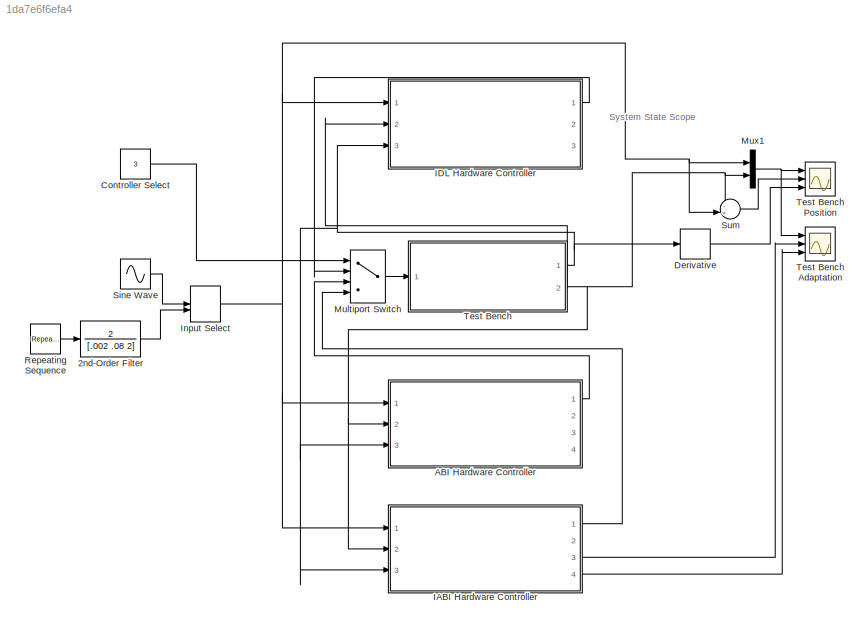
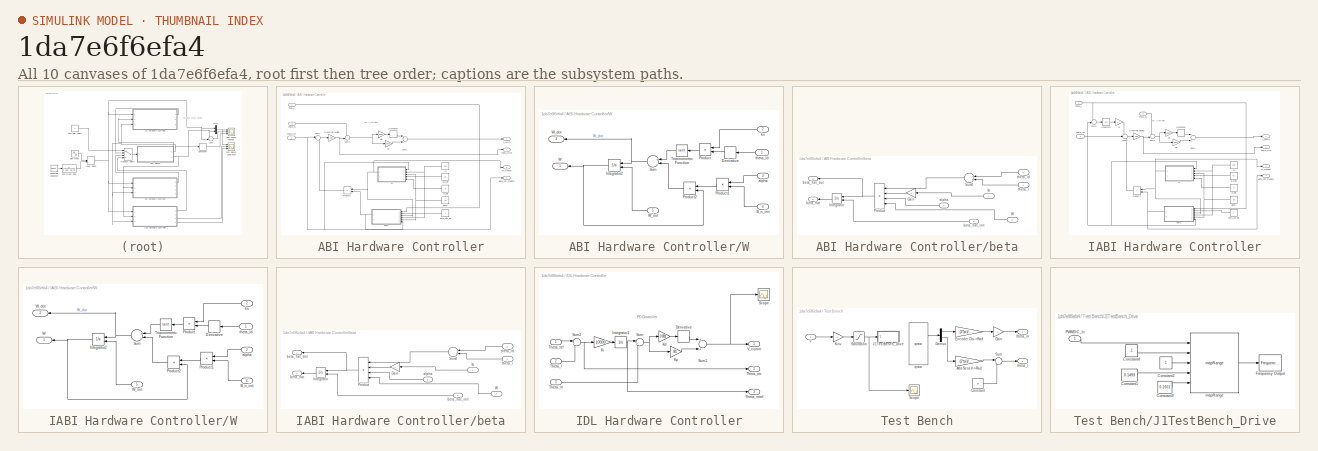
[diagram: thumbnail index - all 10 canvases of the model, root first then tree order]
MODEL slx_1da7e6f6efa4
KIND model
CONFIG AbsTol = auto
CONFIG EnableMultiTasking = on
CONFIG FixedStep = 0.001
CONFIG MaxStep = auto
CONFIG MinStep = auto
CONFIG RelTol = 1e-3
CONFIG SampleTimeConstraint = Unconstrained
CONFIG Solver = ode5
CONFIG SolverName = ode5
CONFIG StartTime = 0.0
CONFIG StopTime = inf
BLOCK [TransferFcn] 2nd-Order Filter
  Denominator = [.002 .08 2]
  Numerator = 2
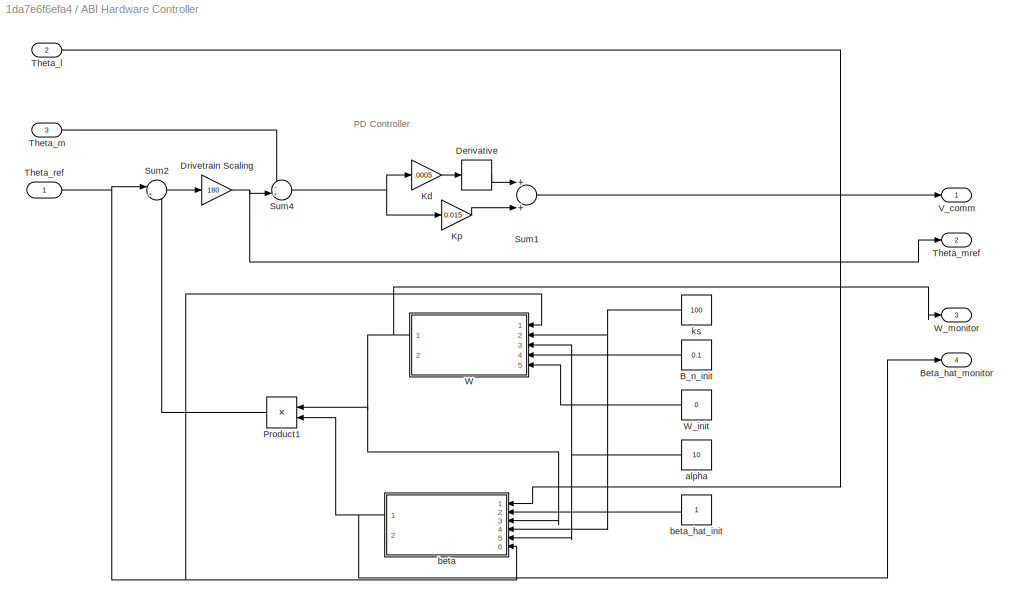
BLOCK [SubSystem] ABI Hardware Controller
  Commented = on
  Ports = [3, 4]
  RequestExecContextInheritance = off
  Variant = off
BLOCK [Constant] ABI Hardware Controller/B_n_init
  Value = 0.1
BLOCK [Outport] ABI Hardware Controller/Beta_hat_monitor
  IconDisplay = Port number
  Port = 4
BLOCK [Derivative] ABI Hardware Controller/Derivative
BLOCK [Gain] ABI Hardware Controller/Drivetrain Scaling
  Gain = 180
  OutDataTypeStr = Inherit: Inherit via internal rule
  ParamDataTypeStr = Inherit: Inherit via internal rule
  SaturateOnIntegerOverflow = off
BLOCK [Gain] ABI Hardware Controller/Kd
  Gain = .0005
  OutDataTypeStr = Inherit: Inherit via internal rule
  ParamDataTypeStr = Inherit: Inherit via internal rule
  SaturateOnIntegerOverflow = off
BLOCK [Gain] ABI Hardware Controller/Kp
  Gain = 0.015
  OutDataTypeStr = Inherit: Inherit via internal rule
  ParamDataTypeStr = Inherit: Inherit via internal rule
  SaturateOnIntegerOverflow = off
BLOCK [Product] ABI Hardware Controller/Product1
  InputSameDT = off
  OutDataTypeStr = Inherit: Inherit via internal rule
  Ports = [2, 1]
  RndMeth = Floor
  SaturateOnIntegerOverflow = off
BLOCK [Sum] ABI Hardware Controller/Sum1
  InputSameDT = off
  OutDataTypeStr = Inherit: Inherit via internal rule
  Ports = [2, 1]
  SaturateOnIntegerOverflow = off
BLOCK [Sum] ABI Hardware Controller/Sum2
  IconShape = round
  InputSameDT = off
  Inputs = |++
  OutDataTypeStr = Inherit: Inherit via internal rule
  Ports = [2, 1]
  SaturateOnIntegerOverflow = off
BLOCK [Sum] ABI Hardware Controller/Sum4
  IconShape = round
  InputSameDT = off
  Inputs = -+|
  OutDataTypeStr = Inherit: Inherit via internal rule
  Ports = [2, 1]
  SaturateOnIntegerOverflow = off
BLOCK [Inport] ABI Hardware Controller/Theta_l
  IconDisplay = Port number
  Port = 2
BLOCK [Inport] ABI Hardware Controller/Theta_m
  IconDisplay = Port number
  Port = 3
BLOCK [Outport] ABI Hardware Controller/Theta_mref
  IconDisplay = Port number
  Port = 2
BLOCK [Inport] ABI Hardware Controller/Theta_ref
  IconDisplay = Port number
BLOCK [Outport] ABI Hardware Controller/V_comm
  IconDisplay = Port number
BLOCK [SubSystem] ABI Hardware Controller/W
  Ports = [5, 2]
  RequestExecContextInheritance = off
  Variant = off
BLOCK [Inport] ABI Hardware Controller/W/B_n_init
  IconDisplay = Port number
  Port = 4
BLOCK [Derivative] ABI Hardware Controller/W/Derivative
BLOCK [Integrator] ABI Hardware Controller/W/Integrator2
  InitialConditionSource = external
  Ports = [2, 1]
BLOCK [Product] ABI Hardware Controller/W/Product
  InputSameDT = off
  OutDataTypeStr = Inherit: Inherit via internal rule
  Ports = [2, 1]
  RndMeth = Floor
  SaturateOnIntegerOverflow = off
BLOCK [Product] ABI Hardware Controller/W/Product1
  InputSameDT = off
  Inputs = */
  OutDataTypeStr = Inherit: Inherit via internal rule
  Ports = [2, 1]
  RndMeth = Floor
  SaturateOnIntegerOverflow = off
BLOCK [Product] ABI Hardware Controller/W/Product2
  InputSameDT = off
  OutDataTypeStr = Inherit: Inherit via internal rule
  Ports = [2, 1]
  RndMeth = Floor
  SaturateOnIntegerOverflow = off
BLOCK [Sum] ABI Hardware Controller/W/Sum
  InputSameDT = off
  Inputs = +-
  OutDataTypeStr = Inherit: Inherit via internal rule
  Ports = [2, 1]
  SaturateOnIntegerOverflow = off
BLOCK [Trigonometry] ABI Hardware Controller/W/Trigonometric Function
  Operator = tanh
  Ports = [1, 1]
BLOCK [Outport] ABI Hardware Controller/W/W
  IconDisplay = Port number
BLOCK [Outport] ABI Hardware Controller/W/W_dot
  IconDisplay = Port number
  Port = 2
BLOCK [Inport] ABI Hardware Controller/W/W_init
  IconDisplay = Port number
  Port = 5
BLOCK [Inport] ABI Hardware Controller/W/alpha
  IconDisplay = Port number
  Port = 3
BLOCK [Inport] ABI Hardware Controller/W/ks
  IconDisplay = Port number
  Port = 2
BLOCK [Inport] ABI Hardware Controller/W/theta_ld
  IconDisplay = Port number
BLOCK [Constant] ABI Hardware Controller/W_init
  Value = 0
BLOCK [Outport] ABI Hardware Controller/W_monitor
  IconDisplay = Port number
  Port = 3
BLOCK [Constant] ABI Hardware Controller/alpha
  Value = 10
BLOCK [SubSystem] ABI Hardware Controller/beta
  Ports = [6, 2]
  RequestExecContextInheritance = off
  Variant = off
BLOCK [Gain] ABI Hardware Controller/beta/Gain
  Gain = -1
  OutDataTypeStr = Inherit: Inherit via internal rule
  ParamDataTypeStr = Inherit: Inherit via internal rule
  SaturateOnIntegerOverflow = off
BLOCK [Integrator] ABI Hardware Controller/beta/Integrator
  InitialConditionSource = external
  Ports = [2, 1]
BLOCK [Product] ABI Hardware Controller/beta/Product
  InputSameDT = off
  Inputs = ****
  OutDataTypeStr = Inherit: Inherit via internal rule
  Ports = [4, 1]
  RndMeth = Floor
  SaturateOnIntegerOverflow = off
BLOCK [Sum] ABI Hardware Controller/beta/Sum4
  InputSameDT = off
  Inputs = -+
  OutDataTypeStr = Inherit: Inherit via internal rule
  Ports = [2, 1]
  SaturateOnIntegerOverflow = off
BLOCK [Inport] ABI Hardware Controller/beta/W
  IconDisplay = Port number
  Port = 3
BLOCK [Inport] ABI Hardware Controller/beta/alpha
  IconDisplay = Port number
  Port = 5
BLOCK [Outport] ABI Hardware Controller/beta/beta_hat
  IconDisplay = Port number
BLOCK [Outport] ABI Hardware Controller/beta/beta_hat_dot
  IconDisplay = Port number
  Port = 2
BLOCK [Inport] ABI Hardware Controller/beta/beta_hat_init
  IconDisplay = Port number
  Port = 2
BLOCK [Inport] ABI Hardware Controller/beta/ks
  IconDisplay = Port number
  Port = 4
BLOCK [Inport] ABI Hardware Controller/beta/theta_l
  IconDisplay = Port number
BLOCK [Inport] ABI Hardware Controller/beta/theta_ld
  IconDisplay = Port number
  Port = 6
BLOCK [Constant] ABI Hardware Controller/beta_hat_init
BLOCK [Constant] ABI Hardware Controller/ks
  Value = 100
BLOCK [Constant] Controller Select
  Value = 3
BLOCK [Derivative] Derivative
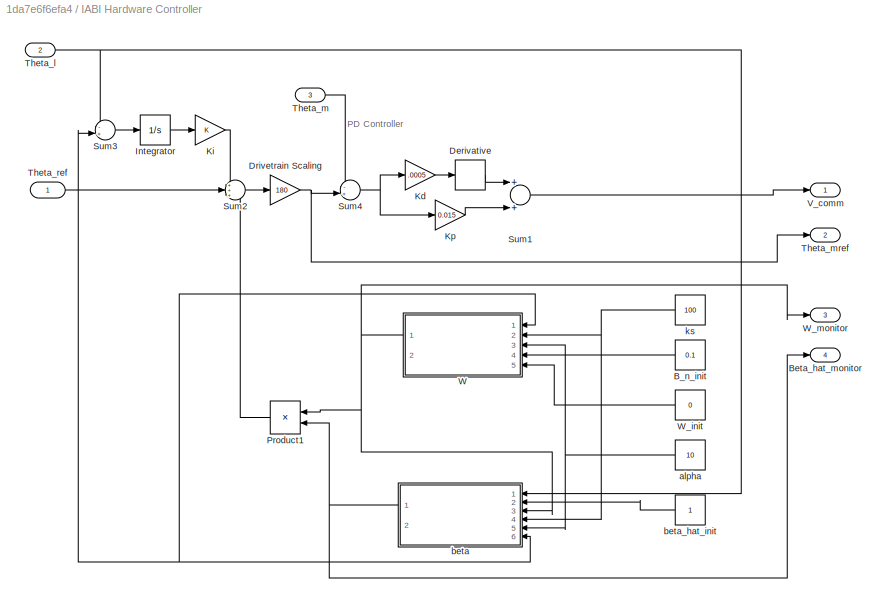
BLOCK [SubSystem] IABI Hardware Controller
  Ports = [3, 4]
  RequestExecContextInheritance = off
  Variant = off
BLOCK [Constant] IABI Hardware Controller/B_n_init
  Value = 0.1
BLOCK [Outport] IABI Hardware Controller/Beta_hat_monitor
  IconDisplay = Port number
  Port = 4
BLOCK [Derivative] IABI Hardware Controller/Derivative
BLOCK [Gain] IABI Hardware Controller/Drivetrain Scaling
  Gain = 180
  OutDataTypeStr = Inherit: Inherit via internal rule
  ParamDataTypeStr = Inherit: Inherit via internal rule
  SaturateOnIntegerOverflow = off
BLOCK [Integrator] IABI Hardware Controller/Integrator
  LimitOutput = on
  LowerSaturationLimit = -10
  Ports = [1, 1]
  UpperSaturationLimit = 10
BLOCK [Gain] IABI Hardware Controller/Kd
  Gain = .0005
  OutDataTypeStr = Inherit: Inherit via internal rule
  ParamDataTypeStr = Inherit: Inherit via internal rule
  SaturateOnIntegerOverflow = off
BLOCK [Gain] IABI Hardware Controller/Ki
  OutDataTypeStr = Inherit: Inherit via internal rule
  ParamDataTypeStr = Inherit: Inherit via internal rule
  SaturateOnIntegerOverflow = off
BLOCK [Gain] IABI Hardware Controller/Kp
  Gain = 0.015
  OutDataTypeStr = Inherit: Inherit via internal rule
  ParamDataTypeStr = Inherit: Inherit via internal rule
  SaturateOnIntegerOverflow = off
BLOCK [Product] IABI Hardware Controller/Product1
  InputSameDT = off
  Inputs = **
  OutDataTypeStr = Inherit: Inherit via internal rule
  Ports = [2, 1]
  RndMeth = Floor
  SaturateOnIntegerOverflow = off
BLOCK [Sum] IABI Hardware Controller/Sum1
  InputSameDT = off
  OutDataTypeStr = Inherit: Inherit via internal rule
  Ports = [2, 1]
  SaturateOnIntegerOverflow = off
BLOCK [Sum] IABI Hardware Controller/Sum2
  IconShape = round
  InputSameDT = off
  Inputs = +++
  OutDataTypeStr = Inherit: Inherit via internal rule
  Ports = [3, 1]
  SaturateOnIntegerOverflow = off
BLOCK [Sum] IABI Hardware Controller/Sum3
  IconShape = round
  InputSameDT = off
  Inputs = -+|
  OutDataTypeStr = Inherit: Inherit via internal rule
  Ports = [2, 1]
  SaturateOnIntegerOverflow = off
BLOCK [Sum] IABI Hardware Controller/Sum4
  IconShape = round
  InputSameDT = off
  Inputs = -+|
  OutDataTypeStr = Inherit: Inherit via internal rule
  Ports = [2, 1]
  SaturateOnIntegerOverflow = off
BLOCK [Inport] IABI Hardware Controller/Theta_l
  IconDisplay = Port number
  Port = 2
BLOCK [Inport] IABI Hardware Controller/Theta_m
  IconDisplay = Port number
  Port = 3
BLOCK [Outport] IABI Hardware Controller/Theta_mref
  IconDisplay = Port number
  Port = 2
BLOCK [Inport] IABI Hardware Controller/Theta_ref
  IconDisplay = Port number
BLOCK [Outport] IABI Hardware Controller/V_comm
  IconDisplay = Port number
BLOCK [SubSystem] IABI Hardware Controller/W
  Ports = [5, 2]
  RequestExecContextInheritance = off
  Variant = off
BLOCK [Inport] IABI Hardware Controller/W/B_n_init
  IconDisplay = Port number
  Port = 4
BLOCK [Derivative] IABI Hardware Controller/W/Derivative
BLOCK [Integrator] IABI Hardware Controller/W/Integrator2
  InitialConditionSource = external
  Ports = [2, 1]
BLOCK [Product] IABI Hardware Controller/W/Product
  InputSameDT = off
  OutDataTypeStr = Inherit: Inherit via internal rule
  Ports = [2, 1]
  RndMeth = Floor
  SaturateOnIntegerOverflow = off
BLOCK [Product] IABI Hardware Controller/W/Product1
  InputSameDT = off
  Inputs = */
  OutDataTypeStr = Inherit: Inherit via internal rule
  Ports = [2, 1]
  RndMeth = Floor
  SaturateOnIntegerOverflow = off
BLOCK [Product] IABI Hardware Controller/W/Product2
  InputSameDT = off
  OutDataTypeStr = Inherit: Inherit via internal rule
  Ports = [2, 1]
  RndMeth = Floor
  SaturateOnIntegerOverflow = off
BLOCK [Sum] IABI Hardware Controller/W/Sum
  InputSameDT = off
  Inputs = +-
  OutDataTypeStr = Inherit: Inherit via internal rule
  Ports = [2, 1]
  SaturateOnIntegerOverflow = off
BLOCK [Trigonometry] IABI Hardware Controller/W/Trigonometric Function
  Operator = tanh
  Ports = [1, 1]
BLOCK [Outport] IABI Hardware Controller/W/W
  IconDisplay = Port number
BLOCK [Outport] IABI Hardware Controller/W/W_dot
  IconDisplay = Port number
  Port = 2
BLOCK [Inport] IABI Hardware Controller/W/W_init
  IconDisplay = Port number
  Port = 5
BLOCK [Inport] IABI Hardware Controller/W/alpha
  IconDisplay = Port number
  Port = 3
BLOCK [Inport] IABI Hardware Controller/W/ks
  IconDisplay = Port number
  Port = 2
BLOCK [Inport] IABI Hardware Controller/W/theta_ld
  IconDisplay = Port number
BLOCK [Constant] IABI Hardware Controller/W_init
  Value = 0
BLOCK [Outport] IABI Hardware Controller/W_monitor
  IconDisplay = Port number
  Port = 3
BLOCK [Constant] IABI Hardware Controller/alpha
  Value = 10
BLOCK [SubSystem] IABI Hardware Controller/beta
  Ports = [6, 2]
  RequestExecContextInheritance = off
  Variant = off
BLOCK [Gain] IABI Hardware Controller/beta/Gain
  Gain = -1
  OutDataTypeStr = Inherit: Inherit via internal rule
  ParamDataTypeStr = Inherit: Inherit via internal rule
  SaturateOnIntegerOverflow = off
BLOCK [Integrator] IABI Hardware Controller/beta/Integrator
  InitialConditionSource = external
  Ports = [2, 1]
BLOCK [Product] IABI Hardware Controller/beta/Product
  InputSameDT = off
  Inputs = ****
  OutDataTypeStr = Inherit: Inherit via internal rule
  Ports = [4, 1]
  RndMeth = Floor
  SaturateOnIntegerOverflow = off
BLOCK [Sum] IABI Hardware Controller/beta/Sum4
  InputSameDT = off
  Inputs = -+
  OutDataTypeStr = Inherit: Inherit via internal rule
  Ports = [2, 1]
  SaturateOnIntegerOverflow = off
BLOCK [Inport] IABI Hardware Controller/beta/W
  IconDisplay = Port number
  Port = 3
BLOCK [Inport] IABI Hardware Controller/beta/alpha
  IconDisplay = Port number
  Port = 5
BLOCK [Outport] IABI Hardware Controller/beta/beta_hat
  IconDisplay = Port number
BLOCK [Outport] IABI Hardware Controller/beta/beta_hat_dot
  IconDisplay = Port number
  Port = 2
BLOCK [Inport] IABI Hardware Controller/beta/beta_hat_init
  IconDisplay = Port number
  Port = 2
BLOCK [Inport] IABI Hardware Controller/beta/ks
  IconDisplay = Port number
  Port = 4
BLOCK [Inport] IABI Hardware Controller/beta/theta_l
  IconDisplay = Port number
BLOCK [Inport] IABI Hardware Controller/beta/theta_ld
  IconDisplay = Port number
  Port = 6
BLOCK [Constant] IABI Hardware Controller/beta_hat_init
BLOCK [Constant] IABI Hardware Controller/ks
  Value = 100
BLOCK [SubSystem] IDL Hardware Controller
  Commented = on
  Ports = [3, 3]
  RequestExecContextInheritance = off
  Variant = off
BLOCK [Derivative] IDL Hardware Controller/Derivative
BLOCK [Integrator] IDL Hardware Controller/Integrator1
  LimitOutput = on
  LowerSaturationLimit = -2000
  Ports = [1, 1]
  UpperSaturationLimit = 2000
BLOCK [Gain] IDL Hardware Controller/Kd
  Gain = 0.0001
  OutDataTypeStr = Inherit: Inherit via internal rule
  ParamDataTypeStr = Inherit: Inherit via internal rule
  SaturateOnIntegerOverflow = off
BLOCK [Gain] IDL Hardware Controller/Ki
  Gain = 10000
  OutDataTypeStr = Inherit: Inherit via internal rule
  ParamDataTypeStr = Inherit: Inherit via internal rule
  SaturateOnIntegerOverflow = off
BLOCK [Gain] IDL Hardware Controller/Kp
  Gain = .001
  OutDataTypeStr = Inherit: Inherit via internal rule
  ParamDataTypeStr = Inherit: Inherit via internal rule
  SaturateOnIntegerOverflow = off
BLOCK [Scope] IDL Hardware Controller/Scope
  NumInputPorts = 1
  Ports = [1]
  ScopeSpecificationString = Simulink.scopes.TimeScopeBlockCfg('CurrentConfiguration', extmgr.ConfigurationSet(extmgr.Configuration('Core','General UI',true),extmgr.Configuration('Core','Source UI',true),extmgr.Configuration('Sources','WiredSimulink',true,'DataLoggingVariableName','ScopeData2'),extmgr.Configuration('Visuals','Time Domain',true,'SerializedDisplays',{struct('MinYLimReal','1.00000','MaxYLimReal','3.00000','YLabe...<+1410ch>
BLOCK [Sum] IDL Hardware Controller/Sum
  IconShape = round
  InputSameDT = off
  Inputs = |+-
  OutDataTypeStr = Inherit: Inherit via internal rule
  Ports = [2, 1]
  SaturateOnIntegerOverflow = off
BLOCK [Sum] IDL Hardware Controller/Sum1
  InputSameDT = off
  OutDataTypeStr = Inherit: Inherit via internal rule
  Ports = [2, 1]
  SaturateOnIntegerOverflow = off
BLOCK [Sum] IDL Hardware Controller/Sum2
  IconShape = round
  InputSameDT = off
  Inputs = |+-
  OutDataTypeStr = Inherit: Inherit via internal rule
  Ports = [2, 1]
  SaturateOnIntegerOverflow = off
BLOCK [Outport] IDL Hardware Controller/Theta_err
  IconDisplay = Port number
  Port = 2
BLOCK [Inport] IDL Hardware Controller/Theta_l
  IconDisplay = Port number
  Port = 2
BLOCK [Inport] IDL Hardware Controller/Theta_m
  IconDisplay = Port number
  Port = 3
BLOCK [Outport] IDL Hardware Controller/Theta_mref
  IconDisplay = Port number
  Port = 3
BLOCK [Inport] IDL Hardware Controller/Theta_ref
  IconDisplay = Port number
BLOCK [Outport] IDL Hardware Controller/V_comm
  IconDisplay = Port number
BLOCK [ManualSwitch] Input Select
BLOCK [MultiPortSwitch] Multiport Switch
  InputSameDT = off
  Ports = [4, 1]
  SaturateOnIntegerOverflow = off
BLOCK [Mux] Mux1
  DisplayOption = bar
  Inputs = 2
  Ports = [2, 1]
BLOCK [Reference] Repeating Sequence  REF=simulink/Sources/Repeating
Sequence
  Ports = [0, 1]
  SourceBlock = simulink/Sources/Repeating\nSequence
  SourceType = Repeating table
BLOCK [Sin] Sine Wave
  Amplitude = 2
  Ports = [0, 1]
  SampleTime = 0
BLOCK [Sum] Sum
  IconShape = round
  InputSameDT = off
  Inputs = -+|
  OutDataTypeStr = Inherit: Inherit via internal rule
  Ports = [2, 1]
  SaturateOnIntegerOverflow = off
BLOCK [SubSystem] Test Bench
  Ports = [1, 2]
  RequestExecContextInheritance = off
  Variant = off
BLOCK [Scope] Test Bench Adaptation
  NumInputPorts = 3
  Ports = [3]
  ScopeSpecificationString = Simulink.scopes.TimeScopeBlockCfg('CurrentConfiguration', extmgr.ConfigurationSet(extmgr.Configuration('Core','General UI',true,'FigureColor',[1 1 1]),extmgr.Configuration('Core','Source UI',true),extmgr.Configuration('Sources','WiredSimulink',true,'DataLoggingVariableName','ScopeData1'),extmgr.Configuration('Visuals','Time Domain',true,'SerializedDisplays',{struct('MinYLimReal','-2.63356','MaxYLi...<+3338ch>
BLOCK [Scope] Test Bench Position
  NumInputPorts = 3
  Ports = [3]
  ScopeSpecificationString = Simulink.scopes.TimeScopeBlockCfg('CurrentConfiguration', extmgr.ConfigurationSet(extmgr.Configuration('Core','General UI',true,'FigureColor',[1 1 1]),extmgr.Configuration('Core','Source UI',true),extmgr.Configuration('Sources','WiredSimulink',true,'DataLoggingVariableName','ScopeData2'),extmgr.Configuration('Visuals','Time Domain',true,'SerializedDisplays',{struct('MinYLimReal','-2.60767','MaxYLi...<+3294ch>
BLOCK [Gain] Test Bench/AbsSensV->Rad
  Gain = (2*pi)/10
  OutDataTypeStr = Inherit: Inherit via internal rule
  ParamDataTypeStr = Inherit: Inherit via internal rule
  SaturateOnIntegerOverflow = off
BLOCK [Constant] Test Bench/Constant
  Value = pi
BLOCK [Demux] Test Bench/Demux
  DisplayOption = bar
  Outputs = 2
  Ports = [1, 2]
BLOCK [Gain] Test Bench/Encoder Cts->Rad
  Gain = (2*pi)/4096
  OutDataTypeStr = Inherit: Inherit via internal rule
  ParamDataTypeStr = Inherit: Inherit via internal rule
  SaturateOnIntegerOverflow = off
BLOCK [Gain] Test Bench/Gain
  Gain = -1
  OutDataTypeStr = Inherit: Inherit via internal rule
  ParamDataTypeStr = Inherit: Inherit via internal rule
  SaturateOnIntegerOverflow = off
BLOCK [SubSystem] Test Bench/J1TestBench_Drive
  Ports = [1]
  RequestExecContextInheritance = off
  Variant = off
BLOCK [Constant] Test Bench/J1TestBench_Drive/Constant1
  Value = 0.1493
BLOCK [Constant] Test Bench/J1TestBench_Drive/Constant2
BLOCK [Constant] Test Bench/J1TestBench_Drive/Constant3
  Value = 0.2601
BLOCK [Constant] Test Bench/J1TestBench_Drive/Constant4
  Value = -1
BLOCK [Reference] Test Bench/J1TestBench_Drive/Frequency Output  REF=sldrtlib/Frequency Output
  AttributesFormatString = Humusoft\nMF644 [auto]
  Ports = [1]
  SourceBlock = sldrtlib/Frequency Output
  SourceType = Simulink Desktop Real-Time Frequency Output
BLOCK [Inport] Test Bench/J1TestBench_Drive/PWMDC_In
  IconDisplay = Port number
BLOCK [Reference] Test Bench/J1TestBench_Drive/mapRange   REF=dcpctrl/mapRange

  Ports = [5, 1]
  SourceBlock = dcpctrl/mapRange
  SourceType = SubSystem
BLOCK [Gain] Test Bench/Kinv
  Gain = -1
  OutDataTypeStr = Inherit: Inherit via internal rule
  ParamDataTypeStr = Inherit: Inherit via internal rule
  SaturateOnIntegerOverflow = off
BLOCK [Saturate] Test Bench/Saturation
  InputPortMap = u0
  LowerLimit = -1
  Ports = [1, 1]
  UpperLimit = 1
BLOCK [Scope] Test Bench/Scope
  NumInputPorts = 1
  Ports = [1]
  ScopeSpecificationString = Simulink.scopes.TimeScopeBlockCfg('CurrentConfiguration', extmgr.ConfigurationSet(extmgr.Configuration('Core','General UI',true),extmgr.Configuration('Core','Source UI',true),extmgr.Configuration('Sources','WiredSimulink',true,'DataLoggingVariableName','ScopeData3'),extmgr.Configuration('Visuals','Time Domain',true,'SerializedDisplays',{struct('MinYLimReal','-0.0845','MaxYLimReal','0.08361','YLabe...<+1723ch>
BLOCK [Sum] Test Bench/Sum
  IconShape = round
  InputSameDT = off
  Inputs = |+-
  OutDataTypeStr = Inherit: Inherit via internal rule
  Ports = [2, 1]
  SaturateOnIntegerOverflow = off
BLOCK [Inport] Test Bench/V
  IconDisplay = Port number
BLOCK [Reference] Test Bench/qraw  REF=dcpctrl/qraw
  Ports = [0, 5]
  SourceBlock = dcpctrl/qraw
  SourceType = SubSystem
BLOCK [Outport] Test Bench/theta_l
  IconDisplay = Port number
  Port = 2
BLOCK [Outport] Test Bench/theta_m
  IconDisplay = Port number
ANNOTATION (root): System State Scope
ANNOTATION ABI Hardware Controller: PD Controller
ANNOTATION IABI Hardware Controller: PD Controller
ANNOTATION IDL Hardware Controller: PD Controller
LINE 2nd-Order Filter:1 -> Input Select:2
LINE ABI Hardware Controller/B_n_init:1 -> ABI Hardware Controller/W:4
LINE ABI Hardware Controller/Derivative:1 -> ABI Hardware Controller/Sum1:1
NET ABI Hardware Controller/Drivetrain Scaling:1 -> ABI Hardware Controller/Sum4:2, ABI Hardware Controller/Theta_mref:1
LINE ABI Hardware Controller/Kd:1 -> ABI Hardware Controller/Derivative:1
LINE ABI Hardware Controller/Kp:1 -> ABI Hardware Controller/Sum1:2
LINE ABI Hardware Controller/Product1:1 -> ABI Hardware Controller/Sum2:2
LINE ABI Hardware Controller/Sum1:1 -> ABI Hardware Controller/V_comm:1
LINE ABI Hardware Controller/Sum2:1 -> ABI Hardware Controller/Drivetrain Scaling:1
NET ABI Hardware Controller/Sum4:1 -> ABI Hardware Controller/Kd:1, ABI Hardware Controller/Kp:1
LINE ABI Hardware Controller/Theta_l:1 -> ABI Hardware Controller/beta:1
LINE ABI Hardware Controller/Theta_m:1 -> ABI Hardware Controller/Sum4:1
NET ABI Hardware Controller/Theta_ref:1 -> ABI Hardware Controller/Sum2:1, ABI Hardware Controller/W:1, ABI Hardware Controller/beta:6
LINE ABI Hardware Controller/W/B_n_init:1 -> ABI Hardware Controller/W/Product1:2
LINE ABI Hardware Controller/W/Derivative:1 -> ABI Hardware Controller/W/Product:2
NET ABI Hardware Controller/W/Integrator2:1 -> ABI Hardware Controller/W/Product2:2, ABI Hardware Controller/W/W:1
LINE ABI Hardware Controller/W/Product1:1 -> ABI Hardware Controller/W/Product2:1
LINE ABI Hardware Controller/W/Product2:1 -> ABI Hardware Controller/W/Sum:2
LINE ABI Hardware Controller/W/Product:1 -> ABI Hardware Controller/W/Trigonometric Function:1
NET ABI Hardware Controller/W/Sum:1 -> ABI Hardware Controller/W/Integrator2:1, ABI Hardware Controller/W/W_dot:1
LINE ABI Hardware Controller/W/Trigonometric Function:1 -> ABI Hardware Controller/W/Sum:1
LINE ABI Hardware Controller/W/W_init:1 -> ABI Hardware Controller/W/Integrator2:2
LINE ABI Hardware Controller/W/alpha:1 -> ABI Hardware Controller/W/Product1:1
LINE ABI Hardware Controller/W/ks:1 -> ABI Hardware Controller/W/Product:1
LINE ABI Hardware Controller/W/theta_ld:1 -> ABI Hardware Controller/W/Derivative:1
NET ABI Hardware Controller/W:1 -> ABI Hardware Controller/Product1:1, ABI Hardware Controller/W_monitor:1, ABI Hardware Controller/beta:3
LINE ABI Hardware Controller/W_init:1 -> ABI Hardware Controller/W:5
NET ABI Hardware Controller/alpha:1 -> ABI Hardware Controller/W:3, ABI Hardware Controller/beta:5
LINE ABI Hardware Controller/beta/Gain:1 -> ABI Hardware Controller/beta/Product:2
LINE ABI Hardware Controller/beta/Integrator:1 -> ABI Hardware Controller/beta/beta_hat:1
NET ABI Hardware Controller/beta/Product:1 -> ABI Hardware Controller/beta/Integrator:1, ABI Hardware Controller/beta/beta_hat_dot:1
LINE ABI Hardware Controller/beta/Sum4:1 -> ABI Hardware Controller/beta/Product:1
LINE ABI Hardware Controller/beta/W:1 -> ABI Hardware Controller/beta/Product:4
LINE ABI Hardware Controller/beta/alpha:1 -> ABI Hardware Controller/beta/Product:3
LINE ABI Hardware Controller/beta/beta_hat_init:1 -> ABI Hardware Controller/beta/Integrator:2
LINE ABI Hardware Controller/beta/ks:1 -> ABI Hardware Controller/beta/Gain:1
LINE ABI Hardware Controller/beta/theta_l:1 -> ABI Hardware Controller/beta/Sum4:2
LINE ABI Hardware Controller/beta/theta_ld:1 -> ABI Hardware Controller/beta/Sum4:1
NET ABI Hardware Controller/beta:1 -> ABI Hardware Controller/Beta_hat_monitor:1, ABI Hardware Controller/Product1:2
LINE ABI Hardware Controller/beta_hat_init:1 -> ABI Hardware Controller/beta:2
NET ABI Hardware Controller/ks:1 -> ABI Hardware Controller/W:2, ABI Hardware Controller/beta:4
LINE ABI Hardware Controller:1 -> Multiport Switch:3
LINE Controller Select:1 -> Multiport Switch:1
LINE Derivative:1 -> Test Bench Position:3
LINE IABI Hardware Controller/B_n_init:1 -> IABI Hardware Controller/W:4
LINE IABI Hardware Controller/Derivative:1 -> IABI Hardware Controller/Sum1:1
NET IABI Hardware Controller/Drivetrain Scaling:1 -> IABI Hardware Controller/Sum4:2, IABI Hardware Controller/Theta_mref:1
LINE IABI Hardware Controller/Integrator:1 -> IABI Hardware Controller/Ki:1
LINE IABI Hardware Controller/Kd:1 -> IABI Hardware Controller/Derivative:1
LINE IABI Hardware Controller/Ki:1 -> IABI Hardware Controller/Sum2:1
LINE IABI Hardware Controller/Kp:1 -> IABI Hardware Controller/Sum1:2
LINE IABI Hardware Controller/Product1:1 -> IABI Hardware Controller/Sum2:3
LINE IABI Hardware Controller/Sum1:1 -> IABI Hardware Controller/V_comm:1
LINE IABI Hardware Controller/Sum2:1 -> IABI Hardware Controller/Drivetrain Scaling:1
LINE IABI Hardware Controller/Sum3:1 -> IABI Hardware Controller/Integrator:1
NET IABI Hardware Controller/Sum4:1 -> IABI Hardware Controller/Kd:1, IABI Hardware Controller/Kp:1
NET IABI Hardware Controller/Theta_l:1 -> IABI Hardware Controller/Sum3:1, IABI Hardware Controller/beta:1
LINE IABI Hardware Controller/Theta_m:1 -> IABI Hardware Controller/Sum4:1
NET IABI Hardware Controller/Theta_ref:1 -> IABI Hardware Controller/Sum2:2, IABI Hardware Controller/Sum3:2, IABI Hardware Controller/W:1, IABI Hardware Controller/beta:6
LINE IABI Hardware Controller/W/B_n_init:1 -> IABI Hardware Controller/W/Product1:2
LINE IABI Hardware Controller/W/Derivative:1 -> IABI Hardware Controller/W/Product:2
NET IABI Hardware Controller/W/Integrator2:1 -> IABI Hardware Controller/W/Product2:2, IABI Hardware Controller/W/W:1
LINE IABI Hardware Controller/W/Product1:1 -> IABI Hardware Controller/W/Product2:1
LINE IABI Hardware Controller/W/Product2:1 -> IABI Hardware Controller/W/Sum:2
LINE IABI Hardware Controller/W/Product:1 -> IABI Hardware Controller/W/Trigonometric Function:1
NET IABI Hardware Controller/W/Sum:1 -> IABI Hardware Controller/W/Integrator2:1, IABI Hardware Controller/W/W_dot:1
LINE IABI Hardware Controller/W/Trigonometric Function:1 -> IABI Hardware Controller/W/Sum:1
LINE IABI Hardware Controller/W/W_init:1 -> IABI Hardware Controller/W/Integrator2:2
LINE IABI Hardware Controller/W/alpha:1 -> IABI Hardware Controller/W/Product1:1
LINE IABI Hardware Controller/W/ks:1 -> IABI Hardware Controller/W/Product:1
LINE IABI Hardware Controller/W/theta_ld:1 -> IABI Hardware Controller/W/Derivative:1
NET IABI Hardware Controller/W:1 -> IABI Hardware Controller/Product1:1, IABI Hardware Controller/W_monitor:1, IABI Hardware Controller/beta:3
LINE IABI Hardware Controller/W_init:1 -> IABI Hardware Controller/W:5
NET IABI Hardware Controller/alpha:1 -> IABI Hardware Controller/W:3, IABI Hardware Controller/beta:5
LINE IABI Hardware Controller/beta/Gain:1 -> IABI Hardware Controller/beta/Product:2
LINE IABI Hardware Controller/beta/Integrator:1 -> IABI Hardware Controller/beta/beta_hat:1
NET IABI Hardware Controller/beta/Product:1 -> IABI Hardware Controller/beta/Integrator:1, IABI Hardware Controller/beta/beta_hat_dot:1
LINE IABI Hardware Controller/beta/Sum4:1 -> IABI Hardware Controller/beta/Product:1
LINE IABI Hardware Controller/beta/W:1 -> IABI Hardware Controller/beta/Product:4
LINE IABI Hardware Controller/beta/alpha:1 -> IABI Hardware Controller/beta/Product:3
LINE IABI Hardware Controller/beta/beta_hat_init:1 -> IABI Hardware Controller/beta/Integrator:2
LINE IABI Hardware Controller/beta/ks:1 -> IABI Hardware Controller/beta/Gain:1
LINE IABI Hardware Controller/beta/theta_l:1 -> IABI Hardware Controller/beta/Sum4:2
LINE IABI Hardware Controller/beta/theta_ld:1 -> IABI Hardware Controller/beta/Sum4:1
NET IABI Hardware Controller/beta:1 -> IABI Hardware Controller/Beta_hat_monitor:1, IABI Hardware Controller/Product1:2
LINE IABI Hardware Controller/beta_hat_init:1 -> IABI Hardware Controller/beta:2
NET IABI Hardware Controller/ks:1 -> IABI Hardware Controller/W:2, IABI Hardware Controller/beta:4
LINE IABI Hardware Controller:1 -> Multiport Switch:4
LINE IABI Hardware Controller:3 -> Test Bench Adaptation:2
LINE IABI Hardware Controller:4 -> Test Bench Adaptation:3
LINE IDL Hardware Controller/Derivative:1 -> IDL Hardware Controller/Sum1:1
NET IDL Hardware Controller/Integrator1:1 -> IDL Hardware Controller/Sum:1, IDL Hardware Controller/Theta_mref:1
LINE IDL Hardware Controller/Kd:1 -> IDL Hardware Controller/Derivative:1
LINE IDL Hardware Controller/Ki:1 -> IDL Hardware Controller/Integrator1:1
LINE IDL Hardware Controller/Kp:1 -> IDL Hardware Controller/Sum1:2
NET IDL Hardware Controller/Sum1:1 -> IDL Hardware Controller/Scope:1, IDL Hardware Controller/V_comm:1
NET IDL Hardware Controller/Sum2:1 -> IDL Hardware Controller/Ki:1, IDL Hardware Controller/Theta_err:1
NET IDL Hardware Controller/Sum:1 -> IDL Hardware Controller/Kd:1, IDL Hardware Controller/Kp:1
LINE IDL Hardware Controller/Theta_l:1 -> IDL Hardware Controller/Sum2:2
LINE IDL Hardware Controller/Theta_m:1 -> IDL Hardware Controller/Sum:2
LINE IDL Hardware Controller/Theta_ref:1 -> IDL Hardware Controller/Sum2:1
LINE IDL Hardware Controller:1 -> Multiport Switch:2
NET Input Select:1 -> ABI Hardware Controller:1, IABI Hardware Controller:1, IDL Hardware Controller:1, Mux1:1, Sum:2
LINE Multiport Switch:1 -> Test Bench:1
NET Mux1:1 -> Test Bench Adaptation:1, Test Bench Position:1
LINE Repeating Sequence:1 -> 2nd-Order Filter:1
LINE Sine Wave:1 -> Input Select:1
LINE Sum:1 -> Test Bench Position:2
LINE Test Bench/AbsSensV->Rad:1 -> Test Bench/Sum:1
LINE Test Bench/Constant:1 -> Test Bench/Sum:2
LINE Test Bench/Demux:1 -> Test Bench/Encoder Cts->Rad:1
LINE Test Bench/Demux:2 -> Test Bench/AbsSensV->Rad:1
LINE Test Bench/Encoder Cts->Rad:1 -> Test Bench/Gain:1
LINE Test Bench/Gain:1 -> Test Bench/theta_m:1
LINE Test Bench/J1TestBench_Drive/Constant1:1 -> Test Bench/J1TestBench_Drive/mapRange :4
LINE Test Bench/J1TestBench_Drive/Constant2:1 -> Test Bench/J1TestBench_Drive/mapRange :3
LINE Test Bench/J1TestBench_Drive/Constant3:1 -> Test Bench/J1TestBench_Drive/mapRange :5
LINE Test Bench/J1TestBench_Drive/Constant4:1 -> Test Bench/J1TestBench_Drive/mapRange :2
LINE Test Bench/J1TestBench_Drive/PWMDC_In:1 -> Test Bench/J1TestBench_Drive/mapRange :1
LINE Test Bench/J1TestBench_Drive/mapRange :1 -> Test Bench/J1TestBench_Drive/Frequency Output:1
LINE Test Bench/Kinv:1 -> Test Bench/Saturation:1
NET Test Bench/Saturation:1 -> Test Bench/J1TestBench_Drive:1, Test Bench/Scope:1
LINE Test Bench/Sum:1 -> Test Bench/theta_l:1
LINE Test Bench/V:1 -> Test Bench/Kinv:1
LINE Test Bench/qraw:2 -> Test Bench/Demux:1
NET Test Bench:1 -> ABI Hardware Controller:3, Derivative:1, IABI Hardware Controller:3, IDL Hardware Controller:3
NET Test Bench:2 -> ABI Hardware Controller:2, IABI Hardware Controller:2, IDL Hardware Controller:2, Mux1:2, Sum:1
note: NET lines group one-source signal fan-out (src -> all destinations, sorted); 1:1 wires keep LINE
